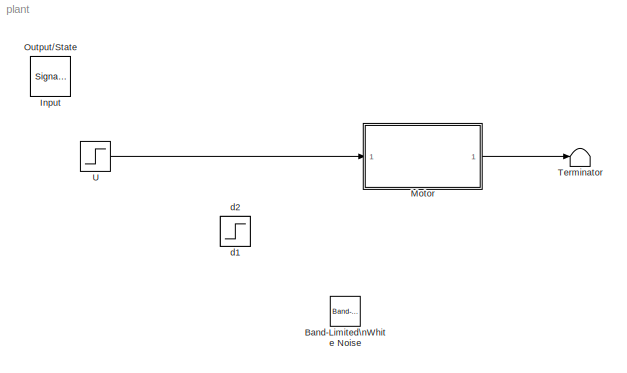
MODEL plant
KIND model
BLOCK [Reference] Band-Limited\nWhite Noise  REF=simulink/Sources/Band-Limited\nWhite Noise
  Cov = 1e-2
  IOType = siggen
  Ports = [0, 1]
  SID = 15
  SourceBlock = simulink/Sources/Band-Limited\nWhite Noise
  SourceType = Band-Limited White Noise.
  Ts = 1e-2
  VectorParams1D = on
  seed = [23341]
BLOCK [SignalViewerScope] Input
  IOType = viewer
  LegendLocations = 0.72967      0.9209     0.20122    0.028719\n  0.719     0.60805     0.21341    0.028719\n  0.719     0.29732     0.21341    0.028719
  LimitDataPoints = off
  MaxDataPoints = 7500
  NumInputPorts = 3
  Ports = []
  RefreshTime = 0.035000
  SID = 16
  ShowDataMarkers = off
  ShowLegends = on
  TimeRange = 20
  YMax = 6.000000000000001~1~1
  YMin = 4.5~0~0
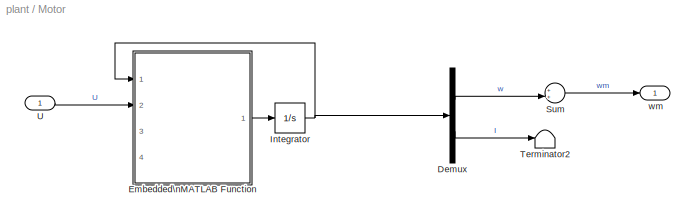
BLOCK [SubSystem] Motor
  FunctionWithSeparateData = off
  MaskHideContents = off
  MinAlgLoopOccurrences = off
  Opaque = off
  Ports = [1, 1]
  PropExecContextOutsideSubsystem = off
  RTWSystemCode = Auto
  RequestExecContextInheritance = off
  SID = 1
BLOCK [Demux] Motor/Demux
  DisplayOption = bar
  Outputs = 2
  Ports = [1, 2]
  SID = 3
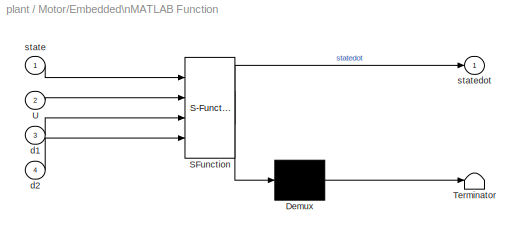
BLOCK [SubSystem] Motor/Embedded\nMATLAB Function
  ErrorFcn = Stateflow.Translate.translate
  FunctionWithSeparateData = off
  MaskDescription = Embedded MATLAB block
  MaskDisplay = bgColor = Simulink.Root.ColorString2Rgb(get_param(gcbh, 'BackgroundColor')); image(imread('private/eml_membrane_16.png','png','BackgroundColor',bgColor(1:3)),'center'); disp([10 10 'fcn']);
  MaskHideContents = off
  MaskIconFrame = on
  MaskIconOpaque = off
  MaskIconRotate = none
  MaskIconUnits = normalized
  MaskPortRotate = default
  MaskSelfModifiable = on
  MaskType = Stateflow
  MinAlgLoopOccurrences = off
  Opaque = off
  PermitHierarchicalResolution = ExplicitOnly
  Ports = [4, 1]
  PropExecContextOutsideSubsystem = off
  RTWSystemCode = Auto
  RequestExecContextInheritance = off
  SFBlockType = MATLAB Function
  SID = 4
  TreatAsAtomicUnit = on
BLOCK [Demux] Motor/Embedded\nMATLAB Function/ Demux 
  Outputs = 1
  Ports = [1, 1]
  SID = 4::18
BLOCK [S-Function] Motor/Embedded\nMATLAB Function/ SFunction 
  EnableBusSupport = on
  FunctionName = sf_sfun
  PortCounts = [4 2]
  Ports = [4, 2]
  SID = 4::17
  Tag = Stateflow S-Function plant 2
BLOCK [Terminator] Motor/Embedded\nMATLAB Function/ Terminator 
  SID = 4::20
BLOCK [Inport] Motor/Embedded\nMATLAB Function/U
  IconDisplay = Port number
  Port = 2
  SID = 4::2
BLOCK [Inport] Motor/Embedded\nMATLAB Function/d1
  IconDisplay = Port number
  Port = 3
  SID = 4::3
BLOCK [Inport] Motor/Embedded\nMATLAB Function/d2
  IconDisplay = Port number
  Port = 4
  SID = 4::4
BLOCK [Inport] Motor/Embedded\nMATLAB Function/state
  IconDisplay = Port number
  SID = 4::1
BLOCK [Outport] Motor/Embedded\nMATLAB Function/statedot
  IconDisplay = Port number
  SID = 4::8
BLOCK [Integrator] Motor/Integrator
  InitialCondition = [wbar; Ibar]
  Ports = [1, 1]
  SID = 7
BLOCK [Sum] Motor/Sum
  IconShape = round
  InputSameDT = off
  Inputs = ++|
  OutDataTypeStr = Inherit: Inherit via internal rule
  Ports = [2, 1]
  SID = 9
  SaturateOnIntegerOverflow = off
BLOCK [Terminator] Motor/Terminator2
  SID = 11
BLOCK [Inport] Motor/U
  IconDisplay = Port number
  SID = 2
BLOCK [Outport] Motor/wm
  IconDisplay = Port number
  SID = 12
BLOCK [SignalViewerScope] Output//State
  IOType = viewer
  LimitDataPoints = off
  MaxDataPoints = 7500
  NumInputPorts = 3
  Ports = []
  RefreshTime = 0.035000
  SID = 17
  SaveName = ScopeData1
  ShowDataMarkers = off
  ShowLegends = off
  TimeRange = 20
  YMax = 380~380~5.5
  YMin = 290~300~2
BLOCK [Terminator] Terminator
  SID = 13
BLOCK [Step] U
  After = Ubar+1
  Before = Ubar
  SID = 14
  SampleTime = 0
  Time = 5
BLOCK [Step] d1
  After = d1bar+1
  Before = d1bar
  IOType = siggen
  SID = 20
  SampleTime = 0
  Time = 10
BLOCK [Step] d2
  After = d2bar+1
  Before = d2bar
  IOType = siggen
  SID = 21
  SampleTime = 0
  Time = 15
LINE Motor/Demux:1 -> Motor/Sum:2
LINE Motor/Demux:2 -> Motor/Terminator2:1
LINE Motor/Embedded\nMATLAB Function/ Demux :1 -> Motor/Embedded\nMATLAB Function/ Terminator :1
LINE Motor/Embedded\nMATLAB Function/ SFunction :1 -> Motor/Embedded\nMATLAB Function/ Demux :1
LINE Motor/Embedded\nMATLAB Function/ SFunction :2 -> Motor/Embedded\nMATLAB Function/statedot:1
LINE Motor/Embedded\nMATLAB Function/U:1 -> Motor/Embedded\nMATLAB Function/ SFunction :2
LINE Motor/Embedded\nMATLAB Function/d1:1 -> Motor/Embedded\nMATLAB Function/ SFunction :3
LINE Motor/Embedded\nMATLAB Function/d2:1 -> Motor/Embedded\nMATLAB Function/ SFunction :4
LINE Motor/Embedded\nMATLAB Function/state:1 -> Motor/Embedded\nMATLAB Function/ SFunction :1
LINE Motor/Embedded\nMATLAB Function:1 -> Motor/Integrator:1
NET Motor/Integrator:1 -> Motor/Demux:1, Motor/Embedded\nMATLAB Function:1
LINE Motor/Sum:1 -> Motor/wm:1
LINE Motor/U:1 -> Motor/Embedded\nMATLAB Function:2
LINE Motor:1 -> Terminator:1
LINE U:1 -> Motor:1
note: NET lines group one-source signal fan-out (src -> all destinations, sorted); 1:1 wires keep LINE
CHART Motor/Embedded\nMATLAB Function states=1 transitions=1
  STATE_LABEL 'eML_blk_kernel()'
